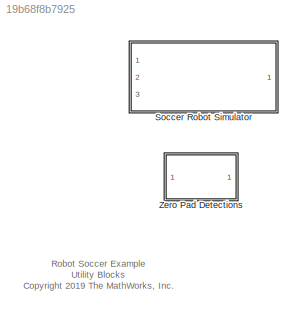
MODEL slx_19b68f8b7925
KIND library
CONFIG AbsTol = auto
CONFIG EnableMultiTasking = off
CONFIG FixedStep = auto
CONFIG MaxStep = auto
CONFIG MinStep = auto
CONFIG RelTol = 1e-3
CONFIG SampleTimeConstraint = Unconstrained
CONFIG Solver = VariableStepAuto
CONFIG SolverName = VariableStepAuto
CONFIG StartTime = 0.0
CONFIG StopTime = 10.0
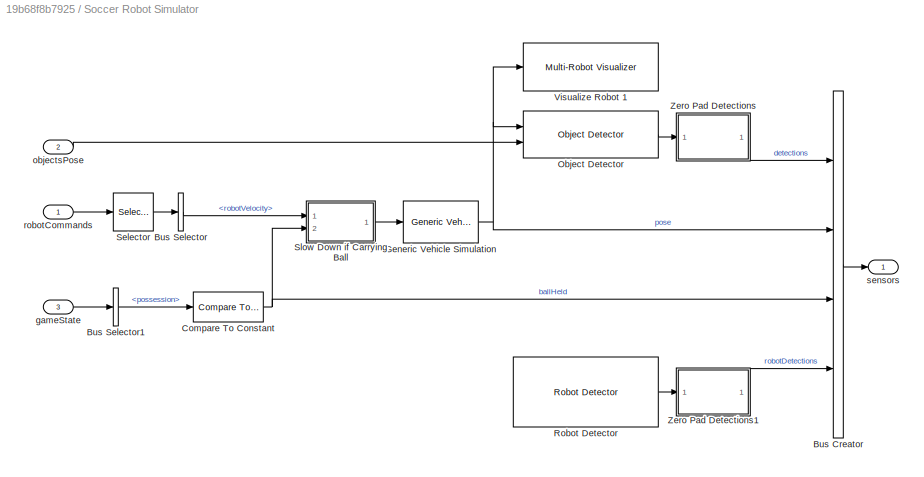
BLOCK [SubSystem] Soccer Robot Simulator
  Ports = [3, 1]
  RequestExecContextInheritance = off
BLOCK [BusCreator] Soccer Robot Simulator/Bus Creator
  DisplayOption = bar
  InheritFromInputs = off
  Inputs = 4
  NonVirtualBus = on
  OutDataTypeStr = Bus: RobotSensorBus
  Ports = [4, 1]
BLOCK [BusSelector] Soccer Robot Simulator/Bus Selector
  OutputAsBus = off
  OutputSignals = robotVelocity
  Ports = [1, 1]
BLOCK [BusSelector] Soccer Robot Simulator/Bus Selector1
  OutputAsBus = off
  OutputSignals = possession
  Ports = [1, 1]
BLOCK [Reference] Soccer Robot Simulator/Compare To Constant  REF=simulink/Logic and Bit
Operations/Compare
To Constant
  Ports = [1, 1]
  SourceBlock = simulink/Logic and Bit\nOperations/Compare\nTo Constant
  SourceProductBaseCode = SL
  SourceProductName = Simulink
  SourceType = Compare To Constant
BLOCK [Reference] Soccer Robot Simulator/Generic Vehicle Simulation  REF=mobileRoboticsLib/Utilities/Generic Vehicle Simulation
  Ports = [1, 1]
  SourceBlock = mobileRoboticsLib/Utilities/Generic Vehicle Simulation
  SourceProductName = Mobile Robotics Simulation Toolbox
  SourceType = Generic Vehicle Simulation
BLOCK [Reference] Soccer Robot Simulator/Object Detector  REF=mobileRoboticsLib/Environments/Object Detector
  Ports = [2, 1]
  SourceBlock = mobileRoboticsLib/Environments/Object Detector
  SourceProductName = Mobile Robotics Simulation Toolbox
  SourceType = ObjectDetector
BLOCK [Reference] Soccer Robot Simulator/Robot Detector  REF=mobileRoboticsLib/Environments/Robot Detector
  Ports = [0, 1]
  SourceBlock = mobileRoboticsLib/Environments/Robot Detector
  SourceProductName = Mobile Robotics Simulation Toolbox
  SourceType = RobotDetector
BLOCK [Selector] Soccer Robot Simulator/Selector
  IndexOptions = Index vector (dialog)
  Indices = robotIdx
  InputPortWidth = numRobots
  OutputSizes = 1
  Ports = [1, 1]
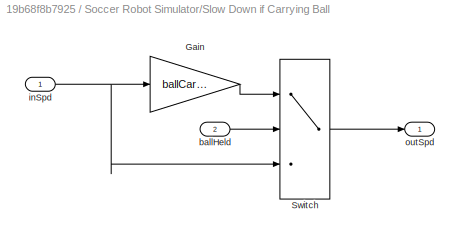
BLOCK [SubSystem] Soccer Robot Simulator/Slow Down if Carrying Ball
  Ports = [2, 1]
  RequestExecContextInheritance = off
BLOCK [Gain] Soccer Robot Simulator/Slow Down if Carrying Ball/Gain
  Gain = ballCarryFactor
  OutDataTypeStr = Inherit: Inherit via internal rule
  ParamDataTypeStr = Inherit: Inherit via internal rule
  SaturateOnIntegerOverflow = off
BLOCK [Switch] Soccer Robot Simulator/Slow Down if Carrying Ball/Switch
  Criteria = u2 > Threshold
  InputSameDT = off
  SaturateOnIntegerOverflow = off
BLOCK [Inport] Soccer Robot Simulator/Slow Down if Carrying Ball/ballHeld
  IconDisplay = Port number
  Port = 2
BLOCK [Inport] Soccer Robot Simulator/Slow Down if Carrying Ball/inSpd
  IconDisplay = Port number
BLOCK [Outport] Soccer Robot Simulator/Slow Down if Carrying Ball/outSpd
  IconDisplay = Port number
BLOCK [Reference] Soccer Robot Simulator/Visualize Robot 1  REF=mobileRoboticsLib/Environments/Multi-Robot Visualizer
  Ports = [1]
  SourceBlock = mobileRoboticsLib/Environments/Multi-Robot Visualizer
  SourceProductName = Mobile Robotics Simulation Toolbox
  SourceType = Multi-Robot Visualizer
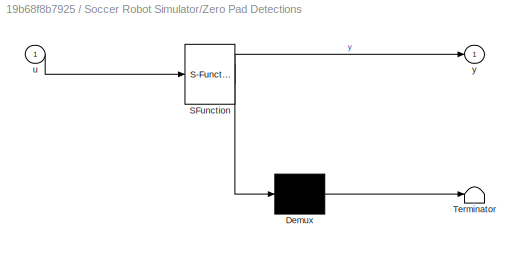
BLOCK [SubSystem] Soccer Robot Simulator/Zero Pad Detections
  ErrorFcn = Stateflow.Translate.translate
  PermitHierarchicalResolution = ExplicitOnly
  Ports = [1, 1]
  RequestExecContextInheritance = off
  SFBlockType = MATLAB Function
  TreatAsAtomicUnit = on
BLOCK [Demux] Soccer Robot Simulator/Zero Pad Detections/ Demux 
  Outputs = 1
  Ports = [1, 1]
BLOCK [S-Function] Soccer Robot Simulator/Zero Pad Detections/ SFunction 
  EnableBusSupport = off
  FunctionName = sf_sfun
  Parameters = maxHits
  PortCounts = [1 2]
  Ports = [1, 2]
  SFcnIsStateOwnerBlock = off
  SFunctionDeploymentMode = off
  Tag = Stateflow S-Function soccerRobotLib 1
BLOCK [Terminator] Soccer Robot Simulator/Zero Pad Detections/ Terminator 
BLOCK [Inport] Soccer Robot Simulator/Zero Pad Detections/u
  IconDisplay = Port number
BLOCK [Outport] Soccer Robot Simulator/Zero Pad Detections/y
  IconDisplay = Port number
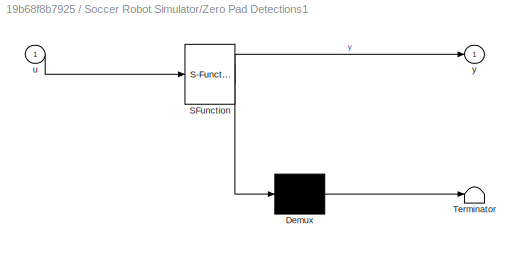
BLOCK [SubSystem] Soccer Robot Simulator/Zero Pad Detections1
  ErrorFcn = Stateflow.Translate.translate
  PermitHierarchicalResolution = ExplicitOnly
  Ports = [1, 1]
  RequestExecContextInheritance = off
  SFBlockType = MATLAB Function
  TreatAsAtomicUnit = on
BLOCK [Demux] Soccer Robot Simulator/Zero Pad Detections1/ Demux 
  Outputs = 1
  Ports = [1, 1]
BLOCK [S-Function] Soccer Robot Simulator/Zero Pad Detections1/ SFunction 
  EnableBusSupport = off
  FunctionName = sf_sfun
  Parameters = maxHits
  PortCounts = [1 2]
  Ports = [1, 2]
  SFcnIsStateOwnerBlock = off
  SFunctionDeploymentMode = off
  Tag = Stateflow S-Function soccerRobotLib 3
BLOCK [Terminator] Soccer Robot Simulator/Zero Pad Detections1/ Terminator 
BLOCK [Inport] Soccer Robot Simulator/Zero Pad Detections1/u
  IconDisplay = Port number
BLOCK [Outport] Soccer Robot Simulator/Zero Pad Detections1/y
  IconDisplay = Port number
BLOCK [Inport] Soccer Robot Simulator/gameState
  IconDisplay = Port number
  Port = 3
BLOCK [Inport] Soccer Robot Simulator/objectsPose
  IconDisplay = Port number
  Port = 2
BLOCK [Inport] Soccer Robot Simulator/robotCommands
  IconDisplay = Port number
BLOCK [Outport] Soccer Robot Simulator/sensors
  IconDisplay = Port number
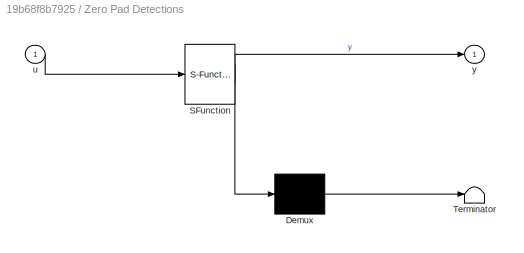
BLOCK [SubSystem] Zero Pad Detections
  ErrorFcn = Stateflow.Translate.translate
  PermitHierarchicalResolution = ExplicitOnly
  Ports = [1, 1]
  RequestExecContextInheritance = off
  SFBlockType = MATLAB Function
  TreatAsAtomicUnit = on
BLOCK [Demux] Zero Pad Detections/ Demux 
  Outputs = 1
  Ports = [1, 1]
BLOCK [S-Function] Zero Pad Detections/ SFunction 
  EnableBusSupport = off
  FunctionName = sf_sfun
  Parameters = maxHits
  PortCounts = [1 2]
  Ports = [1, 2]
  SFcnIsStateOwnerBlock = off
  SFunctionDeploymentMode = off
  Tag = Stateflow S-Function soccerRobotLib 2
BLOCK [Terminator] Zero Pad Detections/ Terminator 
BLOCK [Inport] Zero Pad Detections/u
  IconDisplay = Port number
BLOCK [Outport] Zero Pad Detections/y
  IconDisplay = Port number
ANNOTATION (root): Robot Soccer Example Utility Blocks <copyright redacted>
LINE Soccer Robot Simulator/Bus Creator:1 -> Soccer Robot Simulator/sensors:1
LINE Soccer Robot Simulator/Bus Selector1:1 -> Soccer Robot Simulator/Compare To Constant:1
LINE Soccer Robot Simulator/Bus Selector:1 -> Soccer Robot Simulator/Slow Down if Carrying Ball:1
NET Soccer Robot Simulator/Compare To Constant:1 -> Soccer Robot Simulator/Bus Creator:3, Soccer Robot Simulator/Slow Down if Carrying Ball:2
NET Soccer Robot Simulator/Generic Vehicle Simulation:1 -> Soccer Robot Simulator/Bus Creator:2, Soccer Robot Simulator/Object Detector:1, Soccer Robot Simulator/Visualize Robot 1:1
LINE Soccer Robot Simulator/Object Detector:1 -> Soccer Robot Simulator/Zero Pad Detections:1
LINE Soccer Robot Simulator/Robot Detector:1 -> Soccer Robot Simulator/Zero Pad Detections1:1
LINE Soccer Robot Simulator/Selector:1 -> Soccer Robot Simulator/Bus Selector:1
LINE Soccer Robot Simulator/Slow Down if Carrying Ball/Gain:1 -> Soccer Robot Simulator/Slow Down if Carrying Ball/Switch:1
LINE Soccer Robot Simulator/Slow Down if Carrying Ball/Switch:1 -> Soccer Robot Simulator/Slow Down if Carrying Ball/outSpd:1
LINE Soccer Robot Simulator/Slow Down if Carrying Ball/ballHeld:1 -> Soccer Robot Simulator/Slow Down if Carrying Ball/Switch:2
NET Soccer Robot Simulator/Slow Down if Carrying Ball/inSpd:1 -> Soccer Robot Simulator/Slow Down if Carrying Ball/Gain:1, Soccer Robot Simulator/Slow Down if Carrying Ball/Switch:3
LINE Soccer Robot Simulator/Slow Down if Carrying Ball:1 -> Soccer Robot Simulator/Generic Vehicle Simulation:1
LINE Soccer Robot Simulator/Zero Pad Detections1:1 -> Soccer Robot Simulator/Bus Creator:4
LINE Soccer Robot Simulator/Zero Pad Detections:1 -> Soccer Robot Simulator/Bus Creator:1
LINE Soccer Robot Simulator/gameState:1 -> Soccer Robot Simulator/Bus Selector1:1
LINE Soccer Robot Simulator/objectsPose:1 -> Soccer Robot Simulator/Object Detector:2
LINE Soccer Robot Simulator/robotCommands:1 -> Soccer Robot Simulator/Selector:1
note: NET lines group one-source signal fan-out (src -> all destinations, sorted); 1:1 wires keep LINE
CHART Soccer Robot Simulator/Zero Pad Detections states=1 transitions=1
  STATE_LABEL 'eML_blk_kernel()'
  STATE_LABEL 'SCRIPT:\nfunction y = zeroPad(u,maxHits)\n% Zero-pads object detections to work with arrays of buses\n\ny = zeros(maxHits,3);\nnumElems = min(size(u,1),maxHits);\nfor idx = 1:numElems\n   y(idx,1:3) = u(idx,1:3); \nend'  <repeated x3 — deduplicated; at blocks: Zero Pad Detections, Zero Pad Detections1>
CHART Zero Pad Detections states=1 transitions=1
  STATE_LABEL 'eML_blk_kernel()'
CHART Soccer Robot Simulator/Zero Pad Detections1 states=1 transitions=1
  STATE_LABEL 'eML_blk_kernel()'
